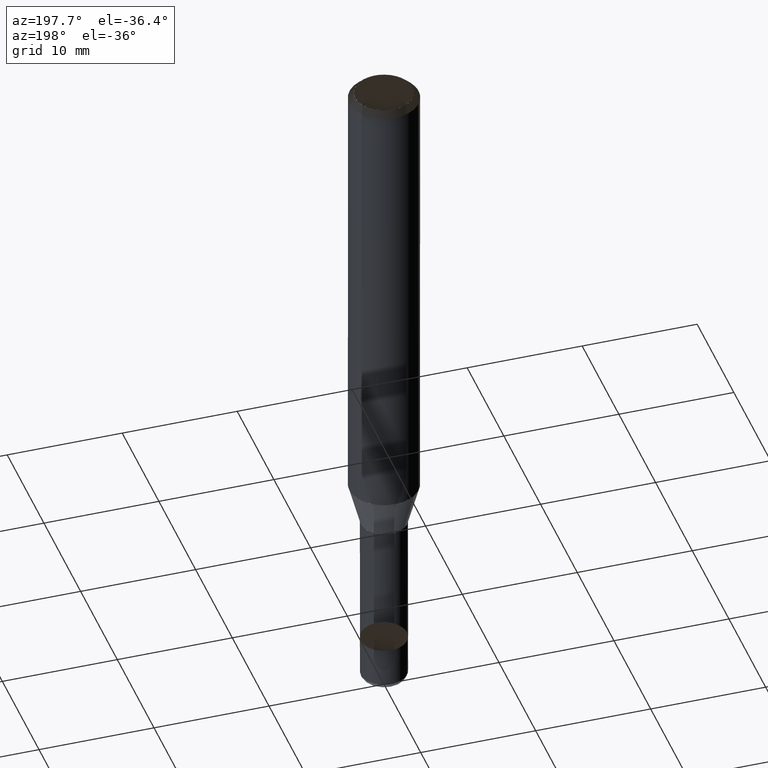
[diagram: clean part render]
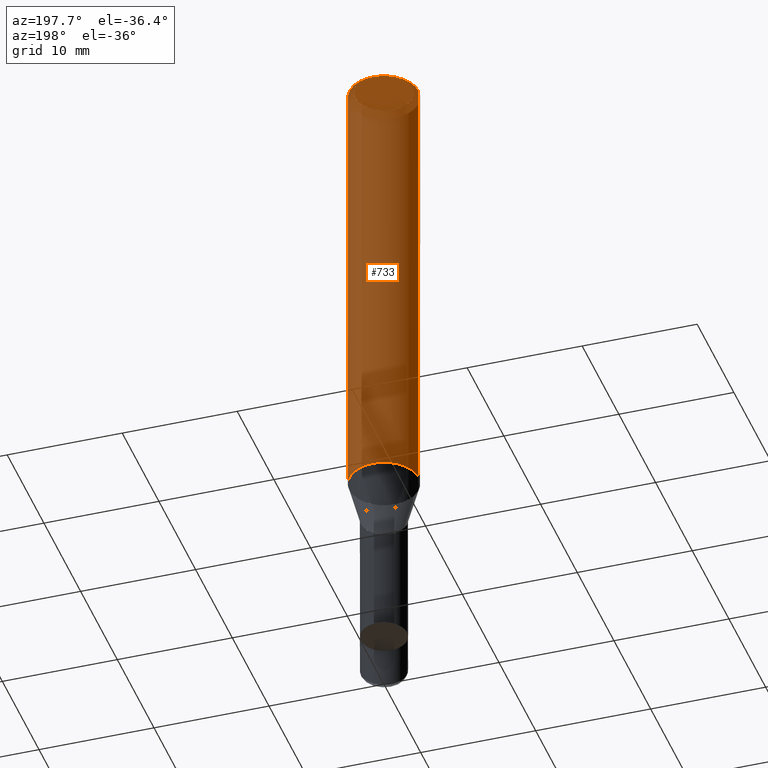
[diagram: same view with one face highlighted and labeled with its STEP entity id]
A machine part, auxiliary view. The second image highlights one B-rep face of the part: STEP entity #733.
In plain terms, the highlighted face is a freeform B-spline surface patch.
Its self-contained STEP definition (entity closure, byte-faithful):
#475=CARTESIAN_POINT('',(3.0,0.0,0.0));
#476=CARTESIAN_POINT('',(3.0,3.0,0.0));
#477=CARTESIAN_POINT('',(0.0,3.0,0.0));
#478=CARTESIAN_POINT('',(-3.0,3.0,0.0));
#479=CARTESIAN_POINT('',(-3.0,0.0,0.0));
#480=CARTESIAN_POINT('',(3.0,0.0,39.767949192431));
#481=CARTESIAN_POINT('',(3.0,3.0,39.767949192431));
#482=CARTESIAN_POINT('',(0.0,3.0,39.767949192431));
#483=CARTESIAN_POINT('',(-3.0,3.0,39.767949192431));
#484=CARTESIAN_POINT('',(-3.0,0.0,39.767949192431));
#714=(
BOUNDED_SURFACE()
B_SPLINE_SURFACE(1,2,(
(#475,#476,#477,#478,#479),
(#480,#481,#482,#483,#484)
), .UNSPECIFIED.,.F.,.F.,.F.)
B_SPLINE_SURFACE_WITH_KNOTS((2,2),(3,2,3),(
0.0,1.0),(
0.0,0.5,1.0), .UNSPECIFIED.)
GEOMETRIC_REPRESENTATION_ITEM()
RATIONAL_B_SPLINE_SURFACE(((1.0,0.707106781187,1.0,0.707106781187,1.0),
(1.0,0.707106781187,1.0,0.707106781187,1.0)
))
REPRESENTATION_ITEM('')
SURFACE()
);
#715=(
BOUNDED_CURVE()
B_SPLINE_CURVE(2,(#480,#481,#482,#483,#484),.UNSPECIFIED.,.F.,.F.)
B_SPLINE_CURVE_WITH_KNOTS((3,2,3),
(0.0,0.5,1.0),.UNSPECIFIED.)
CURVE()
GEOMETRIC_REPRESENTATION_ITEM()
RATIONAL_B_SPLINE_CURVE((1.0,0.707106781187,1.0,0.707106781187,1.0))
REPRESENTATION_ITEM('')
);
#716=(
BOUNDED_CURVE()
B_SPLINE_CURVE(1,(#484,#479),.UNSPECIFIED.,.F.,.F.)
B_SPLINE_CURVE_WITH_KNOTS((2,2),
(0.0,1.0),.UNSPECIFIED.)
CURVE()
GEOMETRIC_REPRESENTATION_ITEM()
RATIONAL_B_SPLINE_CURVE((1.0,1.0))
REPRESENTATION_ITEM('')
);
#717=(
BOUNDED_CURVE()
B_SPLINE_CURVE(2,(#479,#478,#477,#476,#475),.UNSPECIFIED.,.F.,.F.)
B_SPLINE_CURVE_WITH_KNOTS((3,2,3),
(0.0,0.5,1.0),.UNSPECIFIED.)
CURVE()
GEOMETRIC_REPRESENTATION_ITEM()
RATIONAL_B_SPLINE_CURVE((1.0,0.707106781187,1.0,0.707106781187,1.0))
REPRESENTATION_ITEM('')
);
#718=(
BOUNDED_CURVE()
B_SPLINE_CURVE(1,(#475,#480),.UNSPECIFIED.,.F.,.F.)
B_SPLINE_CURVE_WITH_KNOTS((2,2),
(0.0,1.0),.UNSPECIFIED.)
CURVE()
GEOMETRIC_REPRESENTATION_ITEM()
RATIONAL_B_SPLINE_CURVE((1.0,1.0))
REPRESENTATION_ITEM('')
);
#719=VERTEX_POINT('',#475);
#720=VERTEX_POINT('',#479);
#721=VERTEX_POINT('',#480);
#722=VERTEX_POINT('',#484);
#723=EDGE_CURVE('',#721,#722,#715,.T.);
#724=EDGE_CURVE('',#722,#720,#716,.T.);
#725=EDGE_CURVE('',#720,#719,#717,.T.);
#726=EDGE_CURVE('',#719,#721,#718,.T.);
#727=ORIENTED_EDGE('',*,*,#723,.T.);
#728=ORIENTED_EDGE('',*,*,#724,.T.);
#729=ORIENTED_EDGE('',*,*,#725,.T.);
#730=ORIENTED_EDGE('',*,*,#726,.T.);
#731=EDGE_LOOP('',(#727,#728,#729,#730));
#732=FACE_OUTER_BOUND('',#731,.T.);
#733=ADVANCED_FACE('',(#732),#714,.T.);